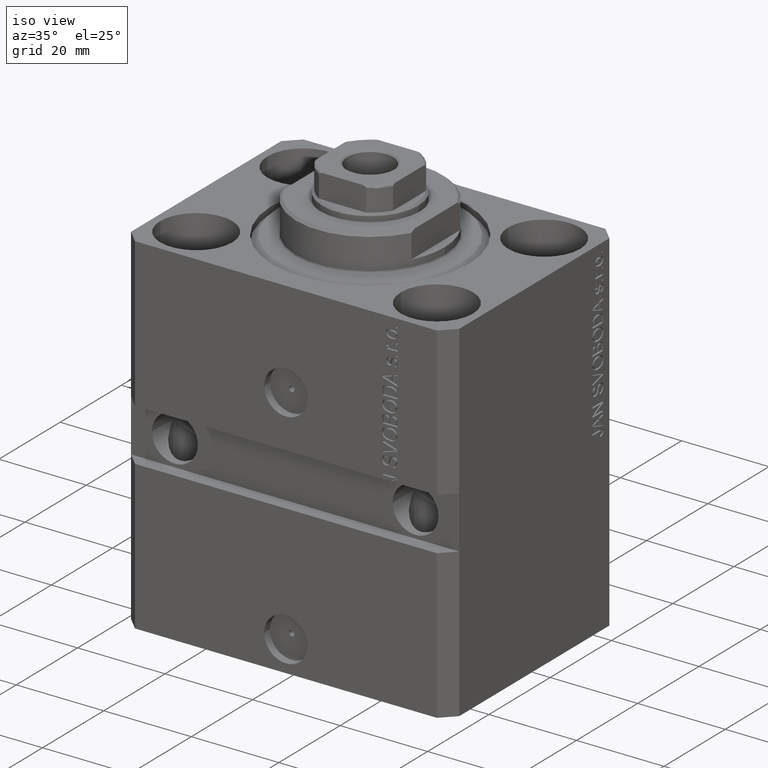
[diagram: clean part render]
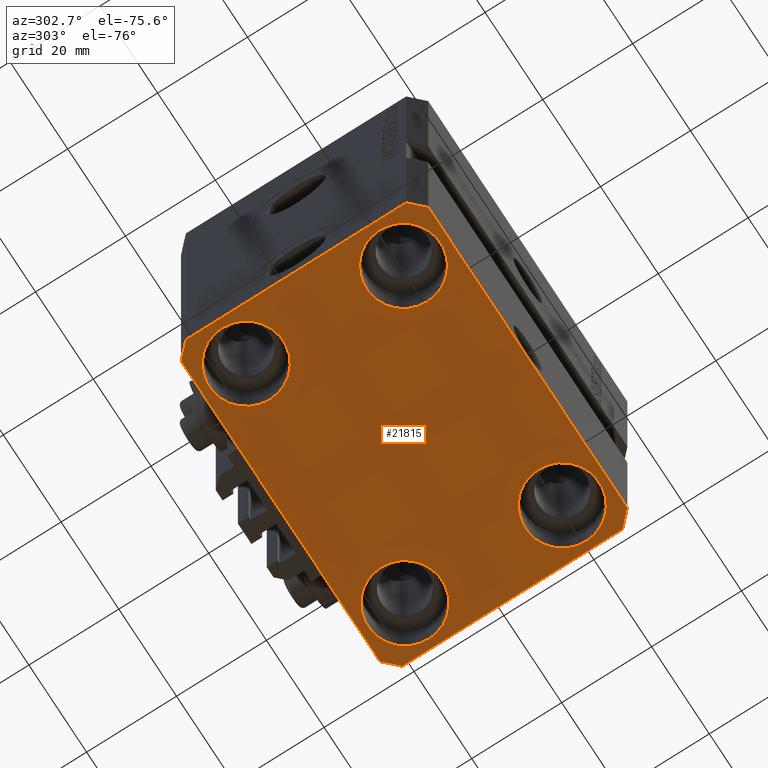
[diagram: tour spotlight — one face highlighted and labeled with its STEP entity id]
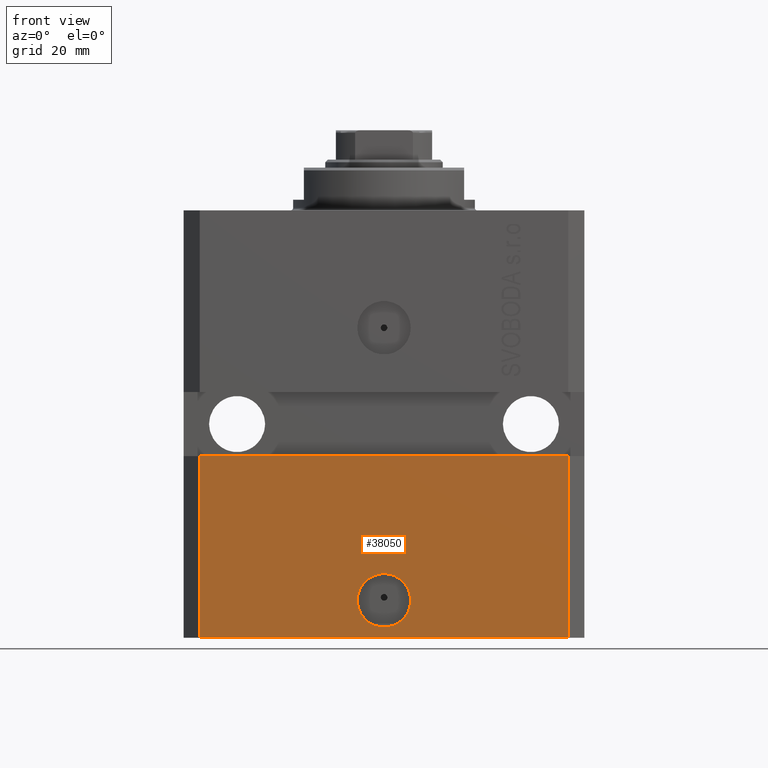
[diagram: tour spotlight — one face highlighted and labeled with its STEP entity id]
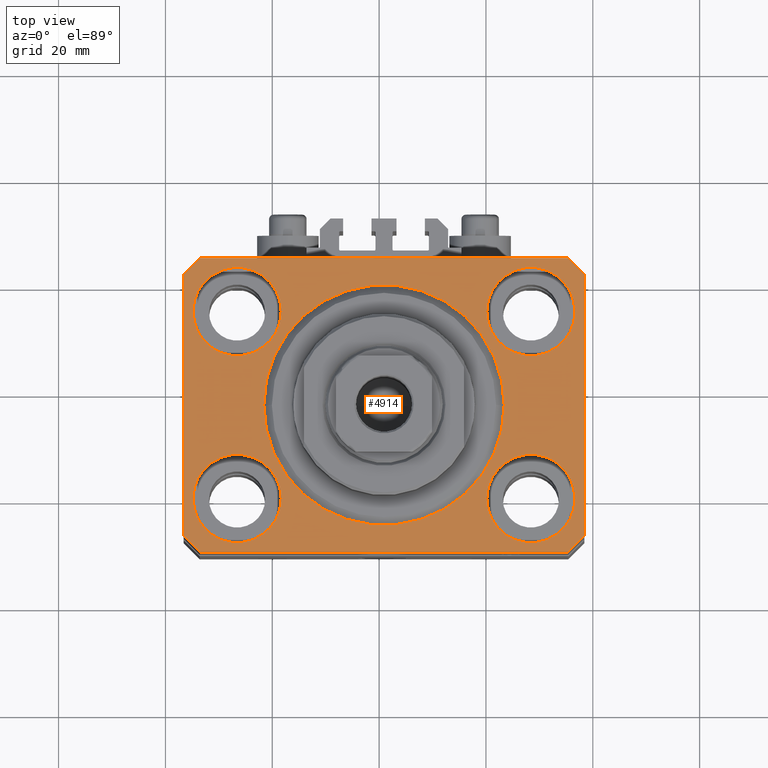
[diagram: tour spotlight — one face highlighted and labeled with its STEP entity id]
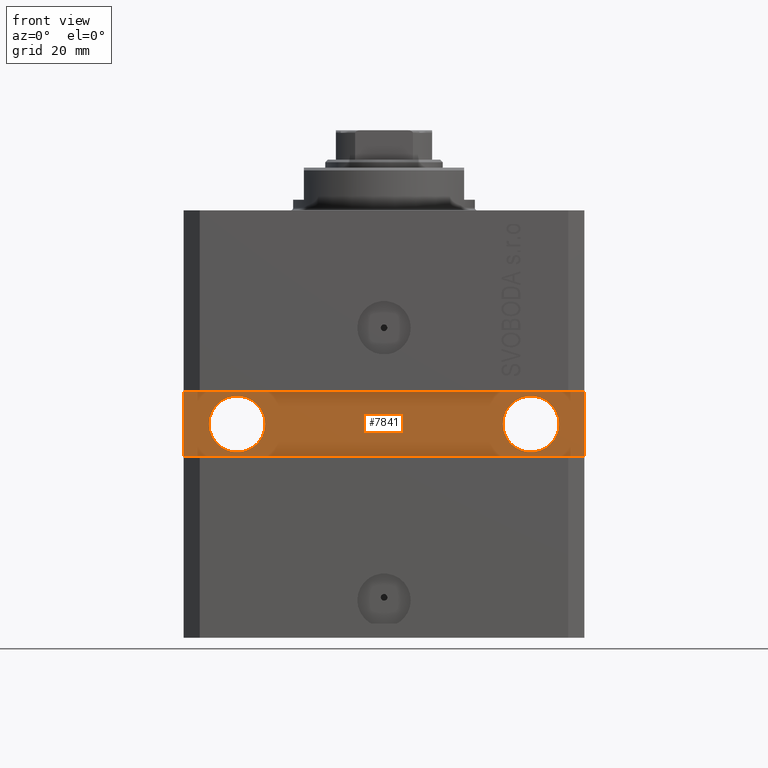
[diagram: tour spotlight — one face highlighted and labeled with its STEP entity id]
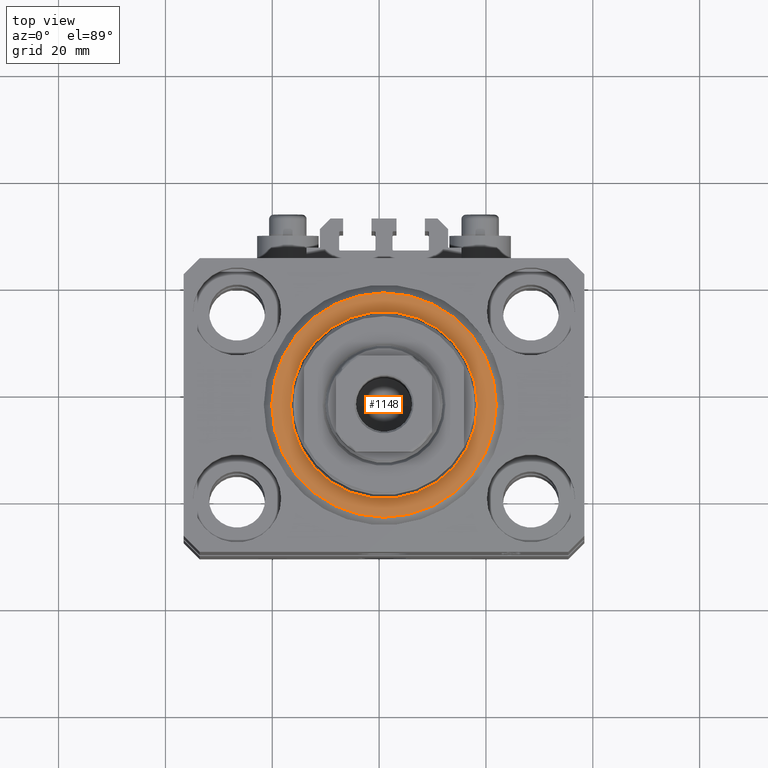
[diagram: tour spotlight — one face highlighted and labeled with its STEP entity id]
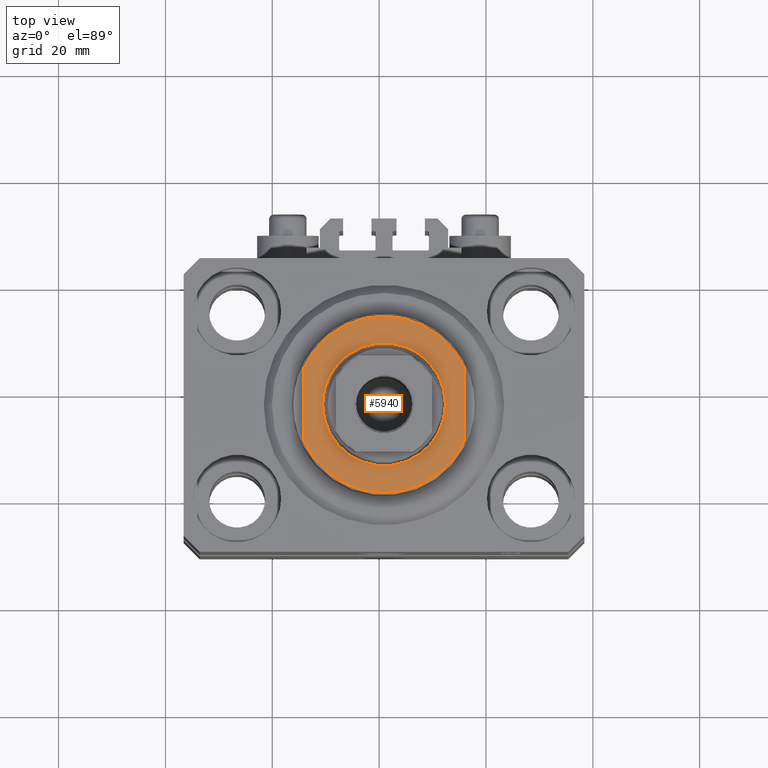
[diagram: tour spotlight — one face highlighted and labeled with its STEP entity id]
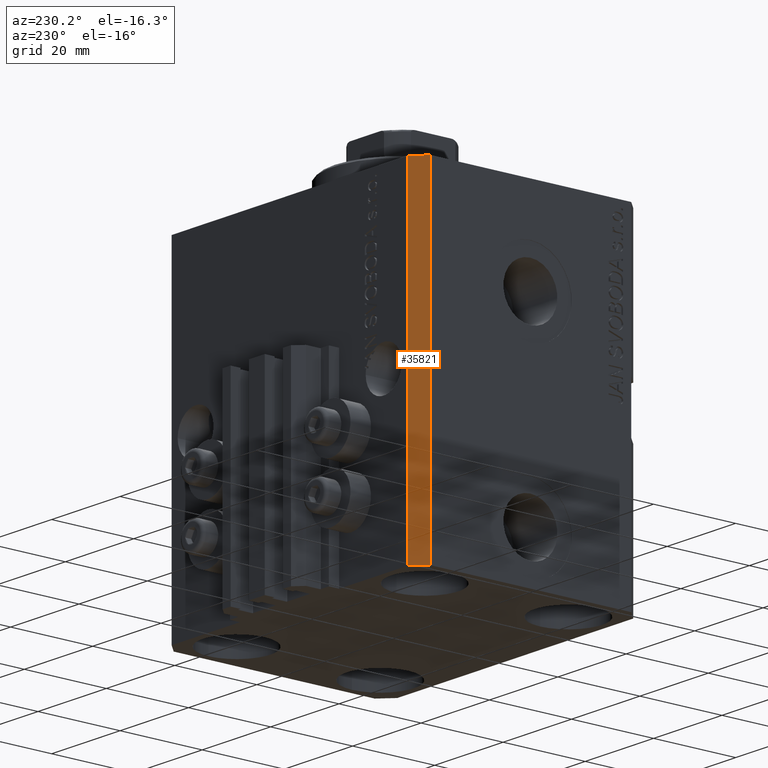
[diagram: tour spotlight — one face highlighted and labeled with its STEP entity id]
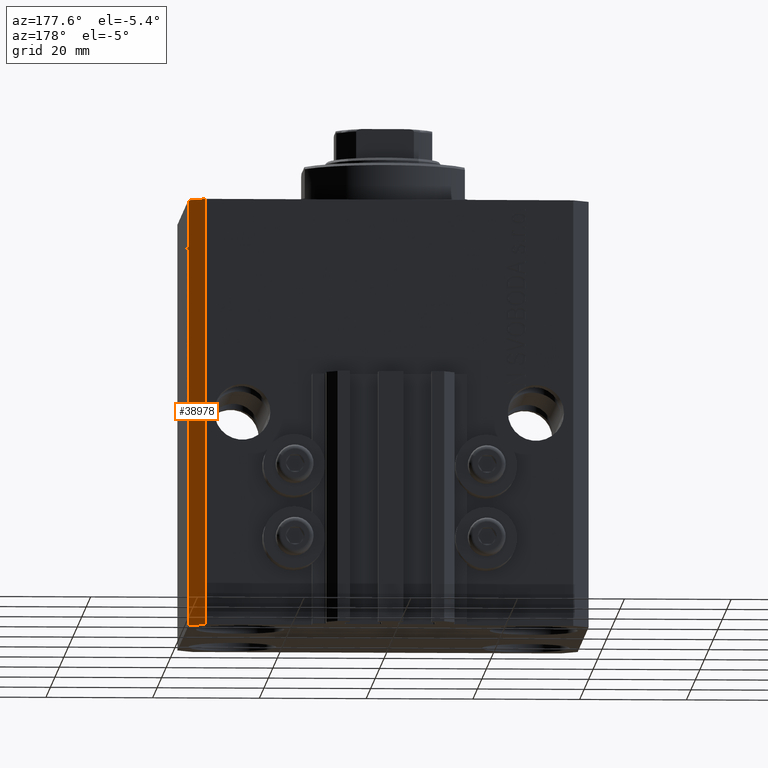
[diagram: tour spotlight — one face highlighted and labeled with its STEP entity id]
A machine part: a face-by-face anatomy tour. The part has 1064 B-rep faces; the first image is the clean iso view, then the 8 largest visible faces are spotlighted one at a time (largest first), each with its STEP entity span.

Face 1 — auxiliary view, entity #21815. In plain terms, the highlighted planar face has unit normal (0, 0, 1).
Definition (entity closure, byte-faithful):
#1331 = CARTESIAN_POINT ( 'NONE',  ( -37.49999999999999289, 24.50000000000000000, -80.00000000000000000 ) ) ;
#1398 = CARTESIAN_POINT ( 'NONE',  ( -27.50000000000000355, 17.50000000000000000, -80.00000000000000000 ) ) ;
#1444 = EDGE_CURVE ( 'NONE', #45995, #45383, #35560, .T. ) ;
#1599 = VERTEX_POINT ( 'NONE', #22073 ) ;
#1707 = EDGE_LOOP ( 'NONE', ( #33715, #18007 ) ) ;
#1992 = VERTEX_POINT ( 'NONE', #36256 ) ;
#2273 = DIRECTION ( 'NONE',  ( 0.000000000000000000, -1.000000000000000000, 0.000000000000000000 ) ) ;
#2406 = DIRECTION ( 'NONE',  ( 1.000000000000000000, 0.000000000000000000, -0.000000000000000000 ) ) ;
#2915 = DIRECTION ( 'NONE',  ( -0.000000000000000000, -0.000000000000000000, 1.000000000000000000 ) ) ;
#3153 = DIRECTION ( 'NONE',  ( 1.000000000000000000, 0.000000000000000000, 0.000000000000000000 ) ) ;
#3207 = CARTESIAN_POINT ( 'NONE',  ( 35.75000000000000711, -17.50000000000000000, -80.00000000000000000 ) ) ;
#3211 = VERTEX_POINT ( 'NONE', #10537 ) ;
#3348 = DIRECTION ( 'NONE',  ( 1.000000000000000000, 0.000000000000000000, 0.000000000000000000 ) ) ;
#3922 = CARTESIAN_POINT ( 'NONE',  ( -34.49999999999999289, 27.50000000000000000, -80.00000000000000000 ) ) ;
#4438 = ORIENTED_EDGE ( 'NONE', *, *, #38809, .F. ) ;
#4740 = AXIS2_PLACEMENT_3D ( 'NONE', #6683, #25385, #3348 ) ;
#6195 = CARTESIAN_POINT ( 'NONE',  ( 19.25000000000000000, -17.50000000000000000, -80.00000000000000000 ) ) ;
#6421 = VECTOR ( 'NONE', #2273, 1000.000000000000000 ) ;
#6488 = CARTESIAN_POINT ( 'NONE',  ( 27.50000000000000355, -17.50000000000000000, -80.00000000000000000 ) ) ;
#6536 = EDGE_CURVE ( 'NONE', #18120, #1992, #34714, .T. ) ;
#6683 = CARTESIAN_POINT ( 'NONE',  ( 27.49999999999999645, 17.50000000000001066, -80.00000000000000000 ) ) ;
#6706 = DIRECTION ( 'NONE',  ( -0.000000000000000000, -0.000000000000000000, 1.000000000000000000 ) ) ;
#7128 = ORIENTED_EDGE ( 'NONE', *, *, #20627, .F. ) ;
#7578 = AXIS2_PLACEMENT_3D ( 'NONE', #6488, #2915, #3153 ) ;
#8033 = CARTESIAN_POINT ( 'NONE',  ( -19.25000000000000355, -17.50000000000000000, -80.00000000000000000 ) ) ;
#8507 = DIRECTION ( 'NONE',  ( 1.000000000000000000, 0.000000000000000000, 0.000000000000000000 ) ) ;
#8830 = PLANE ( 'NONE',  #33189 ) ;
#8927 = LINE ( 'NONE', #19823, #19645 ) ;
#9159 = DIRECTION ( 'NONE',  ( 1.076236605503979380E-14, 1.000000000000000000, 0.000000000000000000 ) ) ;
#9254 = DIRECTION ( 'NONE',  ( 1.000000000000000000, 0.000000000000000000, 0.000000000000000000 ) ) ;
#9292 = FACE_BOUND ( 'NONE', #30485, .T. ) ;
#9815 = EDGE_CURVE ( 'NONE', #28390, #3211, #45188, .T. ) ;
#10031 = VERTEX_POINT ( 'NONE', #8033 ) ;
#10350 = LINE ( 'NONE', #3922, #29246 ) ;
#10537 = CARTESIAN_POINT ( 'NONE',  ( 37.49999999999999289, -24.50000000000000000, -80.00000000000000000 ) ) ;
#10601 = CARTESIAN_POINT ( 'NONE',  ( 19.25000000000000000, 17.50000000000001066, -80.00000000000000000 ) ) ;
#10851 = AXIS2_PLACEMENT_3D ( 'NONE', #12289, #37377, #8507 ) ;
#11191 = DIRECTION ( 'NONE',  ( 0.7071067811865483499, -0.7071067811865466846, 0.000000000000000000 ) ) ;
#12015 = CARTESIAN_POINT ( 'NONE',  ( -27.50000000000000355, -17.50000000000000000, -80.00000000000000000 ) ) ;
#12160 = DIRECTION ( 'NONE',  ( -0.000000000000000000, -0.000000000000000000, 1.000000000000000000 ) ) ;
#12230 = VERTEX_POINT ( 'NONE', #42735 ) ;
#12289 = CARTESIAN_POINT ( 'NONE',  ( -27.50000000000000355, 17.50000000000000000, -80.00000000000000000 ) ) ;
#12334 = CARTESIAN_POINT ( 'NONE',  ( -34.49999999999998579, -27.49999999999999645, -80.00000000000000000 ) ) ;
#12352 = EDGE_CURVE ( 'NONE', #1599, #28370, #24989, .T. ) ;
#12372 = FACE_BOUND ( 'NONE', #28995, .T. ) ;
#12572 = LINE ( 'NONE', #12334, #33385 ) ;
#13222 = LINE ( 'NONE', #17221, #15398 ) ;
#13418 = EDGE_CURVE ( 'NONE', #1992, #14242, #25637, .T. ) ;
#13602 = ORIENTED_EDGE ( 'NONE', *, *, #34130, .F. ) ;
#13907 = EDGE_CURVE ( 'NONE', #10031, #16177, #31529, .T. ) ;
#14242 = VERTEX_POINT ( 'NONE', #25878 ) ;
#14493 = CARTESIAN_POINT ( 'NONE',  ( -19.25000000000000355, 17.50000000000000000, -80.00000000000000000 ) ) ;
#14743 = CARTESIAN_POINT ( 'NONE',  ( -37.49999999999999289, -24.50000000000000000, -80.00000000000000000 ) ) ;
#14995 = CARTESIAN_POINT ( 'NONE',  ( -34.49999999999999289, 27.50000000000000000, -80.00000000000000000 ) ) ;
#15398 = VECTOR ( 'NONE', #46576, 1000.000000000000114 ) ;
#15872 = CIRCLE ( 'NONE', #7578, 8.250000000000000000 ) ;
#16177 = VERTEX_POINT ( 'NONE', #39211 ) ;
#16342 = ORIENTED_EDGE ( 'NONE', *, *, #13418, .F. ) ;
#17153 = AXIS2_PLACEMENT_3D ( 'NONE', #12015, #26457, #40891 ) ;
#17221 = CARTESIAN_POINT ( 'NONE',  ( 37.50000000000051870, 24.49999999999995381, -80.00000000000000000 ) ) ;
#18007 = ORIENTED_EDGE ( 'NONE', *, *, #1444, .T. ) ;
#18120 = VERTEX_POINT ( 'NONE', #1331 ) ;
#18124 = AXIS2_PLACEMENT_3D ( 'NONE', #37861, #41411, #20120 ) ;
#18461 = DIRECTION ( 'NONE',  ( -0.000000000000000000, -0.000000000000000000, 1.000000000000000000 ) ) ;
#18897 = CIRCLE ( 'NONE', #46080, 8.250000000000000000 ) ;
#19011 = CARTESIAN_POINT ( 'NONE',  ( 34.49999999999999289, -27.49999999999999645, -80.00000000000000000 ) ) ;
#19645 = VECTOR ( 'NONE', #9159, 1000.000000000000000 ) ;
#19823 = CARTESIAN_POINT ( 'NONE',  ( 37.49999999999999289, -24.50000000000000000, -80.00000000000000000 ) ) ;
#20120 = DIRECTION ( 'NONE',  ( 1.000000000000000000, 0.000000000000000000, 0.000000000000000000 ) ) ;
#20251 = EDGE_CURVE ( 'NONE', #33971, #37064, #18897, .T. ) ;
#20305 = EDGE_CURVE ( 'NONE', #20406, #12230, #45340, .T. ) ;
#20406 = VERTEX_POINT ( 'NONE', #10601 ) ;
#20421 = DIRECTION ( 'NONE',  ( 0.000000000000000000, 0.000000000000000000, 1.000000000000000000 ) ) ;
#20627 = EDGE_CURVE ( 'NONE', #3211, #30090, #8927, .T. ) ;
#20829 = ORIENTED_EDGE ( 'NONE', *, *, #12352, .F. ) ;
#21039 = EDGE_CURVE ( 'NONE', #16177, #10031, #26467, .T. ) ;
#21204 = DIRECTION ( 'NONE',  ( -1.000000000000000000, 0.000000000000000000, 0.000000000000000000 ) ) ;
#21350 = ORIENTED_EDGE ( 'NONE', *, *, #20251, .T. ) ;
#21815 = ADVANCED_FACE ( 'NONE', ( #9292, #38411, #23510, #12372, #41955 ), #8830, .F. ) ;
#22073 = CARTESIAN_POINT ( 'NONE',  ( 34.50000000000056843, 27.50000000000000000, -80.00000000000000000 ) ) ;
#23510 = FACE_BOUND ( 'NONE', #25029, .T. ) ;
#23665 = CIRCLE ( 'NONE', #4740, 8.249999999999992895 ) ;
#24098 = ORIENTED_EDGE ( 'NONE', *, *, #21039, .T. ) ;
#24128 = DIRECTION ( 'NONE',  ( 0.7071067811865474617, 0.7071067811865474617, 0.000000000000000000 ) ) ;
#24517 = CARTESIAN_POINT ( 'NONE',  ( -37.49999999999999289, 24.50000000000000000, -80.00000000000000000 ) ) ;
#24704 = CARTESIAN_POINT ( 'NONE',  ( -27.50000000000000355, -17.50000000000000000, -80.00000000000000000 ) ) ;
#24989 = LINE ( 'NONE', #40122, #34476 ) ;
#25029 = EDGE_LOOP ( 'NONE', ( #44532, #30319 ) ) ;
#25377 = CARTESIAN_POINT ( 'NONE',  ( -35.75000000000000711, 17.50000000000000000, -80.00000000000000000 ) ) ;
#25385 = DIRECTION ( 'NONE',  ( -0.000000000000000000, -0.000000000000000000, 1.000000000000000000 ) ) ;
#25438 = EDGE_CURVE ( 'NONE', #45383, #45995, #15872, .T. ) ;
#25637 = LINE ( 'NONE', #14743, #42849 ) ;
#25878 = CARTESIAN_POINT ( 'NONE',  ( -34.49999999999998579, -27.49999999999999645, -80.00000000000000000 ) ) ;
#26457 = DIRECTION ( 'NONE',  ( -0.000000000000000000, -0.000000000000000000, 1.000000000000000000 ) ) ;
#26467 = CIRCLE ( 'NONE', #32510, 8.250000000000000000 ) ;
#26468 = ORIENTED_EDGE ( 'NONE', *, *, #13907, .T. ) ;
#26604 = DIRECTION ( 'NONE',  ( 1.000000000000000000, 0.000000000000000000, 0.000000000000000000 ) ) ;
#28223 = CIRCLE ( 'NONE', #10851, 8.250000000000000000 ) ;
#28370 = VERTEX_POINT ( 'NONE', #14995 ) ;
#28390 = VERTEX_POINT ( 'NONE', #19011 ) ;
#28995 = EDGE_LOOP ( 'NONE', ( #21350, #42421 ) ) ;
#29246 = VECTOR ( 'NONE', #32127, 1000.000000000000000 ) ;
#29541 = EDGE_LOOP ( 'NONE', ( #20829, #4438, #7128, #38705, #13602, #16342, #33081, #38538 ) ) ;
#30090 = VERTEX_POINT ( 'NONE', #32895 ) ;
#30151 = CARTESIAN_POINT ( 'NONE',  ( 27.50000000000000355, -17.50000000000000000, -80.00000000000000000 ) ) ;
#30319 = ORIENTED_EDGE ( 'NONE', *, *, #37105, .T. ) ;
#30485 = EDGE_LOOP ( 'NONE', ( #24098, #26468 ) ) ;
#30517 = CARTESIAN_POINT ( 'NONE',  ( 34.49999999999999289, -27.49999999999999645, -80.00000000000000000 ) ) ;
#31529 = CIRCLE ( 'NONE', #17153, 8.250000000000000000 ) ;
#32127 = DIRECTION ( 'NONE',  ( -0.7071067811865471286, -0.7071067811865479058, 0.000000000000000000 ) ) ;
#32510 = AXIS2_PLACEMENT_3D ( 'NONE', #24704, #6706, #35579 ) ;
#32895 = CARTESIAN_POINT ( 'NONE',  ( 37.50000000000051870, 24.49999999999995381, -80.00000000000000000 ) ) ;
#33081 = ORIENTED_EDGE ( 'NONE', *, *, #6536, .F. ) ;
#33189 = AXIS2_PLACEMENT_3D ( 'NONE', #45495, #20421, #2406 ) ;
#33385 = VECTOR ( 'NONE', #9254, 1000.000000000000000 ) ;
#33715 = ORIENTED_EDGE ( 'NONE', *, *, #25438, .T. ) ;
#33971 = VERTEX_POINT ( 'NONE', #25377 ) ;
#34130 = EDGE_CURVE ( 'NONE', #14242, #28390, #12572, .T. ) ;
#34476 = VECTOR ( 'NONE', #21204, 1000.000000000000000 ) ;
#34714 = LINE ( 'NONE', #24517, #6421 ) ;
#35560 = CIRCLE ( 'NONE', #37839, 8.250000000000000000 ) ;
#35579 = DIRECTION ( 'NONE',  ( 1.000000000000000000, 0.000000000000000000, 0.000000000000000000 ) ) ;
#35913 = VECTOR ( 'NONE', #24128, 1000.000000000000114 ) ;
#36256 = CARTESIAN_POINT ( 'NONE',  ( -37.49999999999999289, -24.50000000000000000, -80.00000000000000000 ) ) ;
#37064 = VERTEX_POINT ( 'NONE', #14493 ) ;
#37105 = EDGE_CURVE ( 'NONE', #12230, #20406, #23665, .T. ) ;
#37377 = DIRECTION ( 'NONE',  ( -0.000000000000000000, -0.000000000000000000, 1.000000000000000000 ) ) ;
#37839 = AXIS2_PLACEMENT_3D ( 'NONE', #30151, #12160, #26604 ) ;
#37861 = CARTESIAN_POINT ( 'NONE',  ( 27.49999999999999645, 17.50000000000001066, -80.00000000000000000 ) ) ;
#38411 = FACE_BOUND ( 'NONE', #1707, .T. ) ;
#38538 = ORIENTED_EDGE ( 'NONE', *, *, #46455, .F. ) ;
#38705 = ORIENTED_EDGE ( 'NONE', *, *, #9815, .F. ) ;
#38724 = EDGE_CURVE ( 'NONE', #37064, #33971, #28223, .T. ) ;
#38809 = EDGE_CURVE ( 'NONE', #30090, #1599, #13222, .T. ) ;
#39211 = CARTESIAN_POINT ( 'NONE',  ( -35.75000000000000711, -17.50000000000000000, -80.00000000000000000 ) ) ;
#40122 = CARTESIAN_POINT ( 'NONE',  ( 34.50000000000056843, 27.50000000000000000, -80.00000000000000000 ) ) ;
#40244 = DIRECTION ( 'NONE',  ( 1.000000000000000000, 0.000000000000000000, 0.000000000000000000 ) ) ;
#40891 = DIRECTION ( 'NONE',  ( 1.000000000000000000, 0.000000000000000000, 0.000000000000000000 ) ) ;
#41411 = DIRECTION ( 'NONE',  ( -0.000000000000000000, -0.000000000000000000, 1.000000000000000000 ) ) ;
#41955 = FACE_OUTER_BOUND ( 'NONE', #29541, .T. ) ;
#42421 = ORIENTED_EDGE ( 'NONE', *, *, #38724, .T. ) ;
#42735 = CARTESIAN_POINT ( 'NONE',  ( 35.74999999999999289, 17.50000000000001066, -80.00000000000000000 ) ) ;
#42849 = VECTOR ( 'NONE', #11191, 1000.000000000000000 ) ;
#44532 = ORIENTED_EDGE ( 'NONE', *, *, #20305, .T. ) ;
#45188 = LINE ( 'NONE', #30517, #35913 ) ;
#45340 = CIRCLE ( 'NONE', #18124, 8.249999999999992895 ) ;
#45383 = VERTEX_POINT ( 'NONE', #6195 ) ;
#45495 = CARTESIAN_POINT ( 'NONE',  ( 0.000000000000000000, 0.000000000000000000, -80.00000000000000000 ) ) ;
#45995 = VERTEX_POINT ( 'NONE', #3207 ) ;
#46080 = AXIS2_PLACEMENT_3D ( 'NONE', #1398, #18461, #40244 ) ;
#46455 = EDGE_CURVE ( 'NONE', #28370, #18120, #10350, .T. ) ;
#46576 = DIRECTION ( 'NONE',  ( -0.7071067811865356934, 0.7071067811865594521, 0.000000000000000000 ) ) ;

Face 2 — front view, entity #38050. In plain terms, the highlighted planar face has unit normal (0, -1, 0).
Definition (entity closure, byte-faithful):
#1001 = CARTESIAN_POINT ( 'NONE',  ( -34.49999999999998579, -27.50000000000000000, -46.00000000000000000 ) ) ;
#2509 = AXIS2_PLACEMENT_3D ( 'NONE', #41989, #9564, #24015 ) ;
#3180 = CARTESIAN_POINT ( 'NONE',  ( 34.49999999999999289, -27.49999999999999645, -80.00000000000000000 ) ) ;
#4122 = ORIENTED_EDGE ( 'NONE', *, *, #7468, .F. ) ;
#5636 = EDGE_CURVE ( 'NONE', #28390, #32037, #13858, .T. ) ;
#5807 = EDGE_CURVE ( 'NONE', #42756, #32037, #8168, .T. ) ;
#7248 = VECTOR ( 'NONE', #26095, 1000.000000000000000 ) ;
#7468 = EDGE_CURVE ( 'NONE', #23699, #25419, #10241, .T. ) ;
#8168 = LINE ( 'NONE', #22373, #20804 ) ;
#9254 = DIRECTION ( 'NONE',  ( 1.000000000000000000, 0.000000000000000000, 0.000000000000000000 ) ) ;
#9564 = DIRECTION ( 'NONE',  ( 0.000000000000000000, -1.000000000000000000, 0.000000000000000000 ) ) ;
#10241 = CIRCLE ( 'NONE', #36707, 5.000000000000006217 ) ;
#12334 = CARTESIAN_POINT ( 'NONE',  ( -34.49999999999998579, -27.49999999999999645, -80.00000000000000000 ) ) ;
#12517 = ORIENTED_EDGE ( 'NONE', *, *, #43682, .F. ) ;
#12572 = LINE ( 'NONE', #12334, #33385 ) ;
#12787 = ORIENTED_EDGE ( 'NONE', *, *, #5636, .T. ) ;
#12796 = CARTESIAN_POINT ( 'NONE',  ( -5.000000000000006217, -27.49999999999999645, -73.00000000000000000 ) ) ;
#12966 = EDGE_LOOP ( 'NONE', ( #28291, #4122 ) ) ;
#13112 = FACE_BOUND ( 'NONE', #12966, .T. ) ;
#13858 = LINE ( 'NONE', #3180, #32151 ) ;
#14242 = VERTEX_POINT ( 'NONE', #25878 ) ;
#14982 = CIRCLE ( 'NONE', #37645, 5.000000000000006217 ) ;
#15959 = EDGE_CURVE ( 'NONE', #25419, #23699, #14982, .T. ) ;
#19011 = CARTESIAN_POINT ( 'NONE',  ( 34.49999999999999289, -27.49999999999999645, -80.00000000000000000 ) ) ;
#20313 = DIRECTION ( 'NONE',  ( 1.176083712526788232E-16, -1.000000000000000000, 0.000000000000000000 ) ) ;
#20804 = VECTOR ( 'NONE', #22605, 1000.000000000000000 ) ;
#22373 = CARTESIAN_POINT ( 'NONE',  ( -37.50000000000000000, -27.50000000000000000, -46.00000000000000000 ) ) ;
#22605 = DIRECTION ( 'NONE',  ( 1.000000000000000000, 9.251858538542972814E-17, 0.000000000000000000 ) ) ;
#23699 = VERTEX_POINT ( 'NONE', #12796 ) ;
#24015 = DIRECTION ( 'NONE',  ( 0.000000000000000000, -0.000000000000000000, -1.000000000000000000 ) ) ;
#24797 = ORIENTED_EDGE ( 'NONE', *, *, #34130, .T. ) ;
#25419 = VERTEX_POINT ( 'NONE', #28260 ) ;
#25878 = CARTESIAN_POINT ( 'NONE',  ( -34.49999999999998579, -27.49999999999999645, -80.00000000000000000 ) ) ;
#26095 = DIRECTION ( 'NONE',  ( 0.000000000000000000, 0.000000000000000000, 1.000000000000000000 ) ) ;
#27288 = DIRECTION ( 'NONE',  ( 1.176083712526788232E-16, -1.000000000000000000, 0.000000000000000000 ) ) ;
#27441 = CARTESIAN_POINT ( 'NONE',  ( 34.49999999999999289, -27.49999999999999289, -46.00000000000000000 ) ) ;
#27540 = PLANE ( 'NONE',  #2509 ) ;
#28260 = CARTESIAN_POINT ( 'NONE',  ( 5.000000000000006217, -27.49999999999999645, -73.00000000000000000 ) ) ;
#28291 = ORIENTED_EDGE ( 'NONE', *, *, #15959, .F. ) ;
#28390 = VERTEX_POINT ( 'NONE', #19011 ) ;
#29413 = LINE ( 'NONE', #36273, #7248 ) ;
#30488 = CARTESIAN_POINT ( 'NONE',  ( 0.000000000000000000, -27.49999999999999645, -73.00000000000000000 ) ) ;
#32037 = VERTEX_POINT ( 'NONE', #27441 ) ;
#32151 = VECTOR ( 'NONE', #43192, 1000.000000000000000 ) ;
#33385 = VECTOR ( 'NONE', #9254, 1000.000000000000000 ) ;
#34130 = EDGE_CURVE ( 'NONE', #14242, #28390, #12572, .T. ) ;
#34157 = DIRECTION ( 'NONE',  ( 1.000000000000000000, 0.000000000000000000, 0.000000000000000000 ) ) ;
#34630 = CARTESIAN_POINT ( 'NONE',  ( 0.000000000000000000, -27.49999999999999645, -73.00000000000000000 ) ) ;
#36273 = CARTESIAN_POINT ( 'NONE',  ( -34.49999999999998579, -27.49999999999999645, -80.00000000000000000 ) ) ;
#36707 = AXIS2_PLACEMENT_3D ( 'NONE', #34630, #27288, #34157 ) ;
#36769 = EDGE_LOOP ( 'NONE', ( #43401, #12517, #24797, #12787 ) ) ;
#37645 = AXIS2_PLACEMENT_3D ( 'NONE', #30488, #20313, #44921 ) ;
#38050 = ADVANCED_FACE ( 'NONE', ( #13112, #45764 ), #27540, .T. ) ;
#41989 = CARTESIAN_POINT ( 'NONE',  ( -34.49999999999998579, -27.49999999999999645, -80.00000000000000000 ) ) ;
#42756 = VERTEX_POINT ( 'NONE', #1001 ) ;
#43192 = DIRECTION ( 'NONE',  ( 0.000000000000000000, 0.000000000000000000, 1.000000000000000000 ) ) ;
#43401 = ORIENTED_EDGE ( 'NONE', *, *, #5807, .F. ) ;
#43682 = EDGE_CURVE ( 'NONE', #14242, #42756, #29413, .T. ) ;
#44921 = DIRECTION ( 'NONE',  ( 1.000000000000000000, 0.000000000000000000, 0.000000000000000000 ) ) ;
#45764 = FACE_OUTER_BOUND ( 'NONE', #36769, .T. ) ;

Face 3 — top view, entity #4914. In plain terms, the highlighted planar face has unit normal (0, 0, 1).
Definition (entity closure, byte-faithful):
#149 = EDGE_CURVE ( 'NONE', #13785, #28560, #15047, .T. ) ;
#184 = CARTESIAN_POINT ( 'NONE',  ( -35.75000000000000711, 17.50000000000000000, 0.000000000000000000 ) ) ;
#362 = EDGE_LOOP ( 'NONE', ( #34828, #18197, #3101, #8363, #18243, #13038, #20756, #40966 ) ) ;
#411 = CARTESIAN_POINT ( 'NONE',  ( 37.50000000000051870, 24.49999999999995381, 0.000000000000000000 ) ) ;
#526 = CARTESIAN_POINT ( 'NONE',  ( 0.000000000000000000, 0.000000000000000000, 0.000000000000000000 ) ) ;
#1310 = VERTEX_POINT ( 'NONE', #43894 ) ;
#1333 = EDGE_CURVE ( 'NONE', #1310, #30973, #14780, .T. ) ;
#1635 = AXIS2_PLACEMENT_3D ( 'NONE', #526, #37209, #29172 ) ;
#1908 = DIRECTION ( 'NONE',  ( 1.000000000000000000, 0.000000000000000000, -0.000000000000000000 ) ) ;
#1956 = CARTESIAN_POINT ( 'NONE',  ( 27.50000000000000355, -17.50000000000000000, 0.000000000000000000 ) ) ;
#2901 = EDGE_LOOP ( 'NONE', ( #4112, #24885 ) ) ;
#3087 = CARTESIAN_POINT ( 'NONE',  ( 37.50000000000051870, 24.49999999999995381, 0.000000000000000000 ) ) ;
#3101 = ORIENTED_EDGE ( 'NONE', *, *, #18398, .T. ) ;
#3493 = ORIENTED_EDGE ( 'NONE', *, *, #16537, .F. ) ;
#3678 = VERTEX_POINT ( 'NONE', #16134 ) ;
#3883 = CIRCLE ( 'NONE', #1635, 22.50000000000000355 ) ;
#4112 = ORIENTED_EDGE ( 'NONE', *, *, #19748, .F. ) ;
#4416 = VERTEX_POINT ( 'NONE', #15819 ) ;
#4449 = VECTOR ( 'NONE', #30336, 1000.000000000000000 ) ;
#4914 = ADVANCED_FACE ( 'NONE', ( #41211, #23474, #44535, #8330, #8793, #19210 ), #37900, .T. ) ;
#5063 = CARTESIAN_POINT ( 'NONE',  ( 34.49999999999999289, -27.49999999999999645, 0.000000000000000000 ) ) ;
#5136 = AXIS2_PLACEMENT_3D ( 'NONE', #42083, #10339, #24785 ) ;
#5740 = VERTEX_POINT ( 'NONE', #5063 ) ;
#6193 = DIRECTION ( 'NONE',  ( -0.7071067811865356934, 0.7071067811865594521, 0.000000000000000000 ) ) ;
#6333 = VERTEX_POINT ( 'NONE', #18154 ) ;
#6736 = VERTEX_POINT ( 'NONE', #13117 ) ;
#7243 = CIRCLE ( 'NONE', #11020, 8.250000000000000000 ) ;
#7414 = CIRCLE ( 'NONE', #12715, 8.250000000000000000 ) ;
#7566 = CARTESIAN_POINT ( 'NONE',  ( 27.50000000000000355, -17.50000000000000000, 0.000000000000000000 ) ) ;
#7619 = EDGE_CURVE ( 'NONE', #18411, #36421, #7243, .T. ) ;
#7668 = CARTESIAN_POINT ( 'NONE',  ( -27.50000000000000355, -17.50000000000000000, 0.000000000000000000 ) ) ;
#7685 = CARTESIAN_POINT ( 'NONE',  ( -34.49999999999999289, 27.50000000000000000, 0.000000000000000000 ) ) ;
#7989 = DIRECTION ( 'NONE',  ( 1.000000000000000000, 0.000000000000000000, 0.000000000000000000 ) ) ;
#8330 = FACE_BOUND ( 'NONE', #38918, .T. ) ;
#8363 = ORIENTED_EDGE ( 'NONE', *, *, #25826, .T. ) ;
#8385 = VECTOR ( 'NONE', #29611, 1000.000000000000000 ) ;
#8793 = FACE_BOUND ( 'NONE', #36283, .T. ) ;
#9654 = ORIENTED_EDGE ( 'NONE', *, *, #30718, .F. ) ;
#9675 = AXIS2_PLACEMENT_3D ( 'NONE', #7566, #43297, #22008 ) ;
#9742 = DIRECTION ( 'NONE',  ( 1.000000000000000000, 0.000000000000000000, 0.000000000000000000 ) ) ;
#9970 = CARTESIAN_POINT ( 'NONE',  ( -19.25000000000000355, 17.50000000000000000, 0.000000000000000000 ) ) ;
#10339 = DIRECTION ( 'NONE',  ( 0.000000000000000000, 0.000000000000000000, 1.000000000000000000 ) ) ;
#10980 = CARTESIAN_POINT ( 'NONE',  ( -27.50000000000000355, 17.50000000000000000, 0.000000000000000000 ) ) ;
#11020 = AXIS2_PLACEMENT_3D ( 'NONE', #1956, #41496, #24606 ) ;
#11965 = LINE ( 'NONE', #37284, #19667 ) ;
#11967 = DIRECTION ( 'NONE',  ( 1.000000000000000000, 0.000000000000000000, 0.000000000000000000 ) ) ;
#12651 = EDGE_CURVE ( 'NONE', #6736, #6333, #38272, .T. ) ;
#12715 = AXIS2_PLACEMENT_3D ( 'NONE', #10980, #25197, #24959 ) ;
#13038 = ORIENTED_EDGE ( 'NONE', *, *, #39763, .T. ) ;
#13117 = CARTESIAN_POINT ( 'NONE',  ( 22.50000000000000355, 0.000000000000000000, 0.000000000000000000 ) ) ;
#13785 = VERTEX_POINT ( 'NONE', #184 ) ;
#14780 = LINE ( 'NONE', #7685, #37875 ) ;
#14864 = CARTESIAN_POINT ( 'NONE',  ( 34.49999999999999289, -27.49999999999999645, 0.000000000000000000 ) ) ;
#15047 = CIRCLE ( 'NONE', #25626, 8.250000000000000000 ) ;
#15180 = CARTESIAN_POINT ( 'NONE',  ( -37.49999999999999289, -24.50000000000000000, 0.000000000000000000 ) ) ;
#15252 = DIRECTION ( 'NONE',  ( -0.7071067811865471286, -0.7071067811865479058, 0.000000000000000000 ) ) ;
#15359 = EDGE_CURVE ( 'NONE', #28865, #5740, #15745, .T. ) ;
#15595 = VERTEX_POINT ( 'NONE', #25183 ) ;
#15745 = LINE ( 'NONE', #43690, #44410 ) ;
#15809 = AXIS2_PLACEMENT_3D ( 'NONE', #22437, #25740, #7989 ) ;
#15819 = CARTESIAN_POINT ( 'NONE',  ( 37.49999999999999289, -24.50000000000000000, 0.000000000000000000 ) ) ;
#16134 = CARTESIAN_POINT ( 'NONE',  ( 35.74999999999999289, 17.50000000000001066, 0.000000000000000000 ) ) ;
#16162 = EDGE_CURVE ( 'NONE', #15595, #46356, #21774, .T. ) ;
#16537 = EDGE_CURVE ( 'NONE', #28560, #13785, #7414, .T. ) ;
#16604 = LINE ( 'NONE', #31284, #18294 ) ;
#16884 = EDGE_CURVE ( 'NONE', #36421, #18411, #17964, .T. ) ;
#17964 = CIRCLE ( 'NONE', #9675, 8.250000000000000000 ) ;
#18154 = CARTESIAN_POINT ( 'NONE',  ( -22.50000000000000355, 2.755455298081545172E-15, 0.000000000000000000 ) ) ;
#18197 = ORIENTED_EDGE ( 'NONE', *, *, #1333, .T. ) ;
#18243 = ORIENTED_EDGE ( 'NONE', *, *, #15359, .T. ) ;
#18294 = VECTOR ( 'NONE', #34359, 1000.000000000000000 ) ;
#18398 = EDGE_CURVE ( 'NONE', #30973, #37233, #29875, .T. ) ;
#18411 = VERTEX_POINT ( 'NONE', #30106 ) ;
#19210 = FACE_OUTER_BOUND ( 'NONE', #362, .T. ) ;
#19551 = CARTESIAN_POINT ( 'NONE',  ( -27.50000000000000355, 17.50000000000000000, 0.000000000000000000 ) ) ;
#19613 = ORIENTED_EDGE ( 'NONE', *, *, #16884, .F. ) ;
#19667 = VECTOR ( 'NONE', #33508, 1000.000000000000000 ) ;
#19748 = EDGE_CURVE ( 'NONE', #3678, #45149, #37753, .T. ) ;
#20023 = DIRECTION ( 'NONE',  ( 0.000000000000000000, 0.000000000000000000, 1.000000000000000000 ) ) ;
#20127 = ORIENTED_EDGE ( 'NONE', *, *, #25568, .F. ) ;
#20456 = AXIS2_PLACEMENT_3D ( 'NONE', #7668, #44577, #33461 ) ;
#20756 = ORIENTED_EDGE ( 'NONE', *, *, #31765, .T. ) ;
#21257 = AXIS2_PLACEMENT_3D ( 'NONE', #34840, #31294, #9742 ) ;
#21774 = CIRCLE ( 'NONE', #5136, 8.250000000000000000 ) ;
#22008 = DIRECTION ( 'NONE',  ( 1.000000000000000000, 0.000000000000000000, 0.000000000000000000 ) ) ;
#22437 = CARTESIAN_POINT ( 'NONE',  ( 27.49999999999999645, 17.50000000000001066, 0.000000000000000000 ) ) ;
#22677 = LINE ( 'NONE', #14864, #32826 ) ;
#23474 = FACE_BOUND ( 'NONE', #24567, .T. ) ;
#24567 = EDGE_LOOP ( 'NONE', ( #19613, #25945 ) ) ;
#24577 = EDGE_CURVE ( 'NONE', #38415, #1310, #11965, .T. ) ;
#24606 = DIRECTION ( 'NONE',  ( 1.000000000000000000, 0.000000000000000000, 0.000000000000000000 ) ) ;
#24785 = DIRECTION ( 'NONE',  ( 1.000000000000000000, 0.000000000000000000, 0.000000000000000000 ) ) ;
#24885 = ORIENTED_EDGE ( 'NONE', *, *, #27690, .F. ) ;
#24959 = DIRECTION ( 'NONE',  ( 1.000000000000000000, 0.000000000000000000, 0.000000000000000000 ) ) ;
#25183 = CARTESIAN_POINT ( 'NONE',  ( -35.75000000000000711, -17.50000000000000000, 0.000000000000000000 ) ) ;
#25197 = DIRECTION ( 'NONE',  ( 0.000000000000000000, 0.000000000000000000, 1.000000000000000000 ) ) ;
#25568 = EDGE_CURVE ( 'NONE', #46356, #15595, #40888, .T. ) ;
#25626 = AXIS2_PLACEMENT_3D ( 'NONE', #19551, #20023, #34449 ) ;
#25740 = DIRECTION ( 'NONE',  ( 0.000000000000000000, 0.000000000000000000, 1.000000000000000000 ) ) ;
#25826 = EDGE_CURVE ( 'NONE', #37233, #28865, #29379, .T. ) ;
#25945 = ORIENTED_EDGE ( 'NONE', *, *, #7619, .F. ) ;
#27091 = DIRECTION ( 'NONE',  ( 0.000000000000000000, 0.000000000000000000, 1.000000000000000000 ) ) ;
#27243 = DIRECTION ( 'NONE',  ( 0.000000000000000000, 0.000000000000000000, 1.000000000000000000 ) ) ;
#27690 = EDGE_CURVE ( 'NONE', #45149, #3678, #35597, .T. ) ;
#27716 = EDGE_CURVE ( 'NONE', #39842, #38415, #35524, .T. ) ;
#28009 = DIRECTION ( 'NONE',  ( 1.000000000000000000, 0.000000000000000000, 0.000000000000000000 ) ) ;
#28560 = VERTEX_POINT ( 'NONE', #9970 ) ;
#28865 = VERTEX_POINT ( 'NONE', #35017 ) ;
#29172 = DIRECTION ( 'NONE',  ( 1.000000000000000000, 0.000000000000000000, 0.000000000000000000 ) ) ;
#29379 = LINE ( 'NONE', #15180, #8385 ) ;
#29611 = DIRECTION ( 'NONE',  ( 0.7071067811865483499, -0.7071067811865466846, 0.000000000000000000 ) ) ;
#29875 = LINE ( 'NONE', #37210, #4449 ) ;
#30106 = CARTESIAN_POINT ( 'NONE',  ( 19.25000000000000000, -17.50000000000000000, 0.000000000000000000 ) ) ;
#30336 = DIRECTION ( 'NONE',  ( 0.000000000000000000, -1.000000000000000000, 0.000000000000000000 ) ) ;
#30718 = EDGE_CURVE ( 'NONE', #6333, #6736, #3883, .T. ) ;
#30799 = EDGE_LOOP ( 'NONE', ( #20127, #38174 ) ) ;
#30973 = VERTEX_POINT ( 'NONE', #42852 ) ;
#31284 = CARTESIAN_POINT ( 'NONE',  ( 37.49999999999999289, -24.50000000000000000, 0.000000000000000000 ) ) ;
#31294 = DIRECTION ( 'NONE',  ( 0.000000000000000000, 0.000000000000000000, 1.000000000000000000 ) ) ;
#31765 = EDGE_CURVE ( 'NONE', #4416, #39842, #16604, .T. ) ;
#32826 = VECTOR ( 'NONE', #44205, 1000.000000000000114 ) ;
#33461 = DIRECTION ( 'NONE',  ( 1.000000000000000000, 0.000000000000000000, 0.000000000000000000 ) ) ;
#33508 = DIRECTION ( 'NONE',  ( -1.000000000000000000, 0.000000000000000000, 0.000000000000000000 ) ) ;
#34359 = DIRECTION ( 'NONE',  ( 1.076236605503979380E-14, 1.000000000000000000, 0.000000000000000000 ) ) ;
#34449 = DIRECTION ( 'NONE',  ( 1.000000000000000000, 0.000000000000000000, 0.000000000000000000 ) ) ;
#34828 = ORIENTED_EDGE ( 'NONE', *, *, #24577, .T. ) ;
#34840 = CARTESIAN_POINT ( 'NONE',  ( 27.49999999999999645, 17.50000000000001066, 0.000000000000000000 ) ) ;
#35017 = CARTESIAN_POINT ( 'NONE',  ( -34.49999999999998579, -27.49999999999999645, 0.000000000000000000 ) ) ;
#35113 = CARTESIAN_POINT ( 'NONE',  ( 0.000000000000000000, 0.000000000000000000, 0.000000000000000000 ) ) ;
#35524 = LINE ( 'NONE', #3087, #40955 ) ;
#35597 = CIRCLE ( 'NONE', #21257, 8.249999999999992895 ) ;
#36283 = EDGE_LOOP ( 'NONE', ( #41958, #9654 ) ) ;
#36421 = VERTEX_POINT ( 'NONE', #45633 ) ;
#37209 = DIRECTION ( 'NONE',  ( 0.000000000000000000, 0.000000000000000000, 1.000000000000000000 ) ) ;
#37210 = CARTESIAN_POINT ( 'NONE',  ( -37.49999999999999289, 24.50000000000000000, 0.000000000000000000 ) ) ;
#37233 = VERTEX_POINT ( 'NONE', #43606 ) ;
#37284 = CARTESIAN_POINT ( 'NONE',  ( 34.50000000000056843, 27.50000000000000000, 0.000000000000000000 ) ) ;
#37428 = CARTESIAN_POINT ( 'NONE',  ( 0.000000000000000000, 0.000000000000000000, 0.000000000000000000 ) ) ;
#37753 = CIRCLE ( 'NONE', #15809, 8.249999999999992895 ) ;
#37875 = VECTOR ( 'NONE', #15252, 1000.000000000000000 ) ;
#37900 = PLANE ( 'NONE',  #41918 ) ;
#38174 = ORIENTED_EDGE ( 'NONE', *, *, #16162, .F. ) ;
#38272 = CIRCLE ( 'NONE', #41304, 22.50000000000000355 ) ;
#38415 = VERTEX_POINT ( 'NONE', #45934 ) ;
#38918 = EDGE_LOOP ( 'NONE', ( #3493, #42991 ) ) ;
#38992 = CARTESIAN_POINT ( 'NONE',  ( -19.25000000000000355, -17.50000000000000000, 0.000000000000000000 ) ) ;
#39763 = EDGE_CURVE ( 'NONE', #5740, #4416, #22677, .T. ) ;
#39842 = VERTEX_POINT ( 'NONE', #411 ) ;
#40888 = CIRCLE ( 'NONE', #20456, 8.250000000000000000 ) ;
#40955 = VECTOR ( 'NONE', #6193, 1000.000000000000114 ) ;
#40966 = ORIENTED_EDGE ( 'NONE', *, *, #27716, .T. ) ;
#41211 = FACE_BOUND ( 'NONE', #30799, .T. ) ;
#41304 = AXIS2_PLACEMENT_3D ( 'NONE', #35113, #27091, #28009 ) ;
#41496 = DIRECTION ( 'NONE',  ( 0.000000000000000000, 0.000000000000000000, 1.000000000000000000 ) ) ;
#41918 = AXIS2_PLACEMENT_3D ( 'NONE', #37428, #27243, #1908 ) ;
#41958 = ORIENTED_EDGE ( 'NONE', *, *, #12651, .F. ) ;
#42083 = CARTESIAN_POINT ( 'NONE',  ( -27.50000000000000355, -17.50000000000000000, 0.000000000000000000 ) ) ;
#42462 = CARTESIAN_POINT ( 'NONE',  ( 19.25000000000000000, 17.50000000000001066, 0.000000000000000000 ) ) ;
#42852 = CARTESIAN_POINT ( 'NONE',  ( -37.49999999999999289, 24.50000000000000000, 0.000000000000000000 ) ) ;
#42991 = ORIENTED_EDGE ( 'NONE', *, *, #149, .F. ) ;
#43297 = DIRECTION ( 'NONE',  ( 0.000000000000000000, 0.000000000000000000, 1.000000000000000000 ) ) ;
#43606 = CARTESIAN_POINT ( 'NONE',  ( -37.49999999999999289, -24.50000000000000000, 0.000000000000000000 ) ) ;
#43690 = CARTESIAN_POINT ( 'NONE',  ( -34.49999999999998579, -27.49999999999999645, 0.000000000000000000 ) ) ;
#43894 = CARTESIAN_POINT ( 'NONE',  ( -34.49999999999999289, 27.50000000000000000, 0.000000000000000000 ) ) ;
#44205 = DIRECTION ( 'NONE',  ( 0.7071067811865474617, 0.7071067811865474617, 0.000000000000000000 ) ) ;
#44410 = VECTOR ( 'NONE', #11967, 1000.000000000000000 ) ;
#44535 = FACE_BOUND ( 'NONE', #2901, .T. ) ;
#44577 = DIRECTION ( 'NONE',  ( 0.000000000000000000, 0.000000000000000000, 1.000000000000000000 ) ) ;
#45149 = VERTEX_POINT ( 'NONE', #42462 ) ;
#45633 = CARTESIAN_POINT ( 'NONE',  ( 35.75000000000000711, -17.50000000000000000, 0.000000000000000000 ) ) ;
#45934 = CARTESIAN_POINT ( 'NONE',  ( 34.50000000000056843, 27.50000000000000000, 0.000000000000000000 ) ) ;
#46356 = VERTEX_POINT ( 'NONE', #38992 ) ;

Face 4 — front view, entity #7841. In plain terms, the highlighted planar face has unit normal (0, -1, 0).
Definition (entity closure, byte-faithful):
#678 = DIRECTION ( 'NONE',  ( 9.251858538542972814E-17, -1.000000000000000000, 0.000000000000000000 ) ) ;
#1742 = LINE ( 'NONE', #26616, #32051 ) ;
#2569 = DIRECTION ( 'NONE',  ( 1.000000000000000000, 0.000000000000000000, 0.000000000000000000 ) ) ;
#2770 = ORIENTED_EDGE ( 'NONE', *, *, #21172, .F. ) ;
#3510 = CARTESIAN_POINT ( 'NONE',  ( 2.191435984341280931E-15, -24.49999999999999645, 0.000000000000000000 ) ) ;
#3515 = DIRECTION ( 'NONE',  ( 1.000000000000000000, 0.000000000000000000, 0.000000000000000000 ) ) ;
#4213 = CIRCLE ( 'NONE', #45788, 5.249999999999994671 ) ;
#4874 = CARTESIAN_POINT ( 'NONE',  ( 22.25000000000001421, -24.49999999999999289, -40.00000000000000000 ) ) ;
#5534 = VERTEX_POINT ( 'NONE', #4874 ) ;
#5555 = EDGE_CURVE ( 'NONE', #44723, #7045, #18528, .T. ) ;
#6237 = ORIENTED_EDGE ( 'NONE', *, *, #16050, .T. ) ;
#7045 = VERTEX_POINT ( 'NONE', #25081 ) ;
#7085 = FACE_BOUND ( 'NONE', #34848, .T. ) ;
#7332 = DIRECTION ( 'NONE',  ( 1.171720209325604191E-16, -1.000000000000000000, 0.000000000000000000 ) ) ;
#7558 = PLANE ( 'NONE',  #21614 ) ;
#7841 = ADVANCED_FACE ( 'NONE', ( #7085, #21531, #35952 ), #7558, .T. ) ;
#9054 = VERTEX_POINT ( 'NONE', #32773 ) ;
#9819 = CARTESIAN_POINT ( 'NONE',  ( -37.50000000000000000, -24.50000000000000000, -34.00000000000000000 ) ) ;
#10297 = CARTESIAN_POINT ( 'NONE',  ( 27.50000000000000711, -24.49999999999999289, -40.00000000000000000 ) ) ;
#10827 = EDGE_CURVE ( 'NONE', #9054, #12837, #31497, .T. ) ;
#11294 = ORIENTED_EDGE ( 'NONE', *, *, #10827, .T. ) ;
#11495 = EDGE_CURVE ( 'NONE', #21868, #5534, #4213, .T. ) ;
#12837 = VERTEX_POINT ( 'NONE', #13729 ) ;
#13119 = EDGE_CURVE ( 'NONE', #18841, #9054, #29239, .T. ) ;
#13729 = CARTESIAN_POINT ( 'NONE',  ( 37.49999999999999289, -24.49999999999999289, -33.99999999999998579 ) ) ;
#13801 = CARTESIAN_POINT ( 'NONE',  ( -37.50000000000000000, -24.50000000000000000, -46.00000000000000000 ) ) ;
#14932 = CARTESIAN_POINT ( 'NONE',  ( -32.74999999999999289, -24.50000000000000000, -40.00000000000000711 ) ) ;
#15125 = DIRECTION ( 'NONE',  ( 1.000000000000000000, 9.251858538542972814E-17, 0.000000000000000000 ) ) ;
#16050 = EDGE_CURVE ( 'NONE', #17074, #18841, #19375, .T. ) ;
#16659 = CIRCLE ( 'NONE', #42347, 5.249999999999997335 ) ;
#17074 = VERTEX_POINT ( 'NONE', #9819 ) ;
#18091 = DIRECTION ( 'NONE',  ( 1.000000000000000000, 0.000000000000000000, 0.000000000000000000 ) ) ;
#18194 = CARTESIAN_POINT ( 'NONE',  ( 27.50000000000000711, -24.49999999999999289, -40.00000000000000000 ) ) ;
#18528 = CIRCLE ( 'NONE', #43457, 5.249999999999997335 ) ;
#18841 = VERTEX_POINT ( 'NONE', #13801 ) ;
#19375 = LINE ( 'NONE', #41377, #23305 ) ;
#20167 = VECTOR ( 'NONE', #22150, 1000.000000000000000 ) ;
#20607 = CIRCLE ( 'NONE', #22101, 5.249999999999994671 ) ;
#21113 = ORIENTED_EDGE ( 'NONE', *, *, #36169, .F. ) ;
#21172 = EDGE_CURVE ( 'NONE', #7045, #44723, #16659, .T. ) ;
#21531 = FACE_BOUND ( 'NONE', #36141, .T. ) ;
#21614 = AXIS2_PLACEMENT_3D ( 'NONE', #3510, #678, #15125 ) ;
#21868 = VERTEX_POINT ( 'NONE', #32232 ) ;
#22101 = AXIS2_PLACEMENT_3D ( 'NONE', #18194, #7332, #3515 ) ;
#22150 = DIRECTION ( 'NONE',  ( 1.000000000000000000, 9.251858538542972814E-17, 0.000000000000000000 ) ) ;
#22391 = VECTOR ( 'NONE', #38379, 1000.000000000000000 ) ;
#23305 = VECTOR ( 'NONE', #23640, 1000.000000000000000 ) ;
#23640 = DIRECTION ( 'NONE',  ( 0.000000000000000000, 0.000000000000000000, -1.000000000000000000 ) ) ;
#23879 = ORIENTED_EDGE ( 'NONE', *, *, #5555, .F. ) ;
#23949 = CARTESIAN_POINT ( 'NONE',  ( 37.49999999999999289, -24.49999999999999289, -46.00000000000000000 ) ) ;
#25081 = CARTESIAN_POINT ( 'NONE',  ( -22.24999999999999645, -24.50000000000000000, -40.00000000000000711 ) ) ;
#26616 = CARTESIAN_POINT ( 'NONE',  ( 37.49999999999999289, -24.49999999999999289, -33.99999999999998579 ) ) ;
#26896 = CARTESIAN_POINT ( 'NONE',  ( -27.49999999999999289, -24.50000000000000000, -40.00000000000000711 ) ) ;
#28911 = ORIENTED_EDGE ( 'NONE', *, *, #11495, .F. ) ;
#29239 = LINE ( 'NONE', #39418, #20167 ) ;
#31497 = LINE ( 'NONE', #23949, #22391 ) ;
#32051 = VECTOR ( 'NONE', #33720, 1000.000000000000000 ) ;
#32232 = CARTESIAN_POINT ( 'NONE',  ( 32.75000000000000000, -24.49999999999999289, -40.00000000000000000 ) ) ;
#32773 = CARTESIAN_POINT ( 'NONE',  ( 37.49999999999999289, -24.49999999999999289, -46.00000000000000000 ) ) ;
#33720 = DIRECTION ( 'NONE',  ( -1.000000000000000000, -9.251858538542972814E-17, -1.850371707708594563E-16 ) ) ;
#34440 = ORIENTED_EDGE ( 'NONE', *, *, #13119, .T. ) ;
#34848 = EDGE_LOOP ( 'NONE', ( #28911, #21113 ) ) ;
#35007 = CARTESIAN_POINT ( 'NONE',  ( -27.49999999999999289, -24.50000000000000000, -40.00000000000000711 ) ) ;
#35952 = FACE_OUTER_BOUND ( 'NONE', #41028, .T. ) ;
#36141 = EDGE_LOOP ( 'NONE', ( #2770, #23879 ) ) ;
#36169 = EDGE_CURVE ( 'NONE', #5534, #21868, #20607, .T. ) ;
#36616 = DIRECTION ( 'NONE',  ( 1.000000000000000000, 0.000000000000000000, 0.000000000000000000 ) ) ;
#38107 = DIRECTION ( 'NONE',  ( 1.101411730780568590E-16, -1.000000000000000000, 0.000000000000000000 ) ) ;
#38379 = DIRECTION ( 'NONE',  ( 0.000000000000000000, 0.000000000000000000, 1.000000000000000000 ) ) ;
#39391 = EDGE_CURVE ( 'NONE', #12837, #17074, #1742, .T. ) ;
#39418 = CARTESIAN_POINT ( 'NONE',  ( -37.50000000000000000, -24.50000000000000000, -46.00000000000000000 ) ) ;
#41028 = EDGE_LOOP ( 'NONE', ( #34440, #11294, #46666, #6237 ) ) ;
#41335 = DIRECTION ( 'NONE',  ( 1.101411730780568590E-16, -1.000000000000000000, 0.000000000000000000 ) ) ;
#41377 = CARTESIAN_POINT ( 'NONE',  ( -37.50000000000000000, -24.50000000000000000, -34.00000000000000000 ) ) ;
#42347 = AXIS2_PLACEMENT_3D ( 'NONE', #35007, #38107, #2569 ) ;
#43457 = AXIS2_PLACEMENT_3D ( 'NONE', #26896, #41335, #36616 ) ;
#43669 = DIRECTION ( 'NONE',  ( 1.171720209325604191E-16, -1.000000000000000000, 0.000000000000000000 ) ) ;
#44723 = VERTEX_POINT ( 'NONE', #14932 ) ;
#45788 = AXIS2_PLACEMENT_3D ( 'NONE', #10297, #43669, #18091 ) ;
#46666 = ORIENTED_EDGE ( 'NONE', *, *, #39391, .T. ) ;

Face 5 — top view, entity #1148. In plain terms, the highlighted planar face has unit normal (0, 0, -1).
Definition (entity closure, byte-faithful):
#604 = EDGE_CURVE ( 'NONE', #32115, #7932, #45282, .T. ) ;
#1148 = ADVANCED_FACE ( 'NONE', ( #31660, #41866 ), #24555, .F. ) ;
#2305 = CARTESIAN_POINT ( 'NONE',  ( 17.50000000000000000, 0.000000000000000000, -2.168404344971008868E-16 ) ) ;
#2423 = CARTESIAN_POINT ( 'NONE',  ( 0.000000000000000000, 0.000000000000000000, 0.000000000000000000 ) ) ;
#2608 = CARTESIAN_POINT ( 'NONE',  ( -20.99999999999998934, 2.663606788145492628E-15, 0.000000000000000000 ) ) ;
#3024 = CARTESIAN_POINT ( 'NONE',  ( 20.99999999999998934, 0.000000000000000000, 0.000000000000000000 ) ) ;
#3308 = AXIS2_PLACEMENT_3D ( 'NONE', #44387, #11954, #26394 ) ;
#6438 = DIRECTION ( 'NONE',  ( 0.000000000000000000, 0.000000000000000000, 1.000000000000000000 ) ) ;
#7932 = VERTEX_POINT ( 'NONE', #2305 ) ;
#8036 = DIRECTION ( 'NONE',  ( -0.000000000000000000, -0.000000000000000000, -1.000000000000000000 ) ) ;
#9661 = DIRECTION ( 'NONE',  ( 1.000000000000000000, 0.000000000000000000, -0.000000000000000000 ) ) ;
#11954 = DIRECTION ( 'NONE',  ( 0.000000000000000000, 0.000000000000000000, 1.000000000000000000 ) ) ;
#13562 = DIRECTION ( 'NONE',  ( -0.000000000000000000, -0.000000000000000000, -1.000000000000000000 ) ) ;
#13788 = VERTEX_POINT ( 'NONE', #3024 ) ;
#17564 = DIRECTION ( 'NONE',  ( 1.000000000000000000, 0.000000000000000000, 0.000000000000000000 ) ) ;
#17670 = CIRCLE ( 'NONE', #3308, 17.50000000000000000 ) ;
#18951 = AXIS2_PLACEMENT_3D ( 'NONE', #28105, #23653, #9661 ) ;
#19833 = AXIS2_PLACEMENT_3D ( 'NONE', #23413, #8036, #44008 ) ;
#21338 = ORIENTED_EDGE ( 'NONE', *, *, #36299, .T. ) ;
#22915 = AXIS2_PLACEMENT_3D ( 'NONE', #43130, #13562, #17564 ) ;
#23413 = CARTESIAN_POINT ( 'NONE',  ( 0.000000000000000000, 0.000000000000000000, 0.000000000000000000 ) ) ;
#23484 = ORIENTED_EDGE ( 'NONE', *, *, #37137, .T. ) ;
#23653 = DIRECTION ( 'NONE',  ( 0.000000000000000000, 0.000000000000000000, 1.000000000000000000 ) ) ;
#24555 = PLANE ( 'NONE',  #18951 ) ;
#26394 = DIRECTION ( 'NONE',  ( 1.000000000000000000, 0.000000000000000000, 0.000000000000000000 ) ) ;
#28105 = CARTESIAN_POINT ( 'NONE',  ( 0.000000000000000000, 0.000000000000000000, 0.000000000000000000 ) ) ;
#29409 = AXIS2_PLACEMENT_3D ( 'NONE', #2423, #6438, #32242 ) ;
#29947 = EDGE_LOOP ( 'NONE', ( #21338, #23484 ) ) ;
#31519 = ORIENTED_EDGE ( 'NONE', *, *, #40160, .T. ) ;
#31641 = EDGE_LOOP ( 'NONE', ( #31519, #46776 ) ) ;
#31660 = FACE_BOUND ( 'NONE', #31641, .T. ) ;
#32115 = VERTEX_POINT ( 'NONE', #45423 ) ;
#32242 = DIRECTION ( 'NONE',  ( 1.000000000000000000, 0.000000000000000000, 0.000000000000000000 ) ) ;
#35222 = VERTEX_POINT ( 'NONE', #2608 ) ;
#36299 = EDGE_CURVE ( 'NONE', #13788, #35222, #40232, .T. ) ;
#37137 = EDGE_CURVE ( 'NONE', #35222, #13788, #43293, .T. ) ;
#40160 = EDGE_CURVE ( 'NONE', #7932, #32115, #17670, .T. ) ;
#40232 = CIRCLE ( 'NONE', #19833, 20.99999999999998934 ) ;
#41866 = FACE_OUTER_BOUND ( 'NONE', #29947, .T. ) ;
#43130 = CARTESIAN_POINT ( 'NONE',  ( 0.000000000000000000, 0.000000000000000000, 0.000000000000000000 ) ) ;
#43293 = CIRCLE ( 'NONE', #22915, 20.99999999999998934 ) ;
#44008 = DIRECTION ( 'NONE',  ( 1.000000000000000000, 0.000000000000000000, 0.000000000000000000 ) ) ;
#44387 = CARTESIAN_POINT ( 'NONE',  ( 0.000000000000000000, 0.000000000000000000, 0.000000000000000000 ) ) ;
#45282 = CIRCLE ( 'NONE', #29409, 17.50000000000000000 ) ;
#45423 = CARTESIAN_POINT ( 'NONE',  ( -17.50000000000000000, 2.143131898507868643E-15, -2.168404344971008868E-16 ) ) ;
#46776 = ORIENTED_EDGE ( 'NONE', *, *, #604, .T. ) ;

Face 6 — top view, entity #5940. In plain terms, the highlighted planar face has unit normal (0, 0, 1).
Definition (entity closure, byte-faithful):
#229 = CARTESIAN_POINT ( 'NONE',  ( 0.000000000000000000, 0.000000000000000000, -8.000000000000000000 ) ) ;
#2388 = ORIENTED_EDGE ( 'NONE', *, *, #38500, .T. ) ;
#2712 = VERTEX_POINT ( 'NONE', #13516 ) ;
#2975 = CARTESIAN_POINT ( 'NONE',  ( 0.000000000000000000, 0.000000000000000000, -8.000000000000000000 ) ) ;
#3229 = VERTEX_POINT ( 'NONE', #43675 ) ;
#3416 = LINE ( 'NONE', #17867, #45767 ) ;
#3763 = FACE_BOUND ( 'NONE', #24769, .T. ) ;
#4270 = CARTESIAN_POINT ( 'NONE',  ( 11.50000000000000355, 1.408343819019456570E-15, -8.000000000000000000 ) ) ;
#5295 = DIRECTION ( 'NONE',  ( 0.000000000000000000, 0.000000000000000000, -1.000000000000000000 ) ) ;
#5902 = EDGE_LOOP ( 'NONE', ( #25827, #31589, #32488, #23777 ) ) ;
#5940 = ADVANCED_FACE ( 'NONE', ( #3763, #18215 ), #32671, .T. ) ;
#6278 = EDGE_CURVE ( 'NONE', #19058, #23525, #22206, .T. ) ;
#8373 = CARTESIAN_POINT ( 'NONE',  ( -14.99999999999999645, 6.873863542433765517, -8.000000000000000000 ) ) ;
#9209 = EDGE_CURVE ( 'NONE', #23525, #3229, #19276, .T. ) ;
#10790 = DIRECTION ( 'NONE',  ( -1.000000000000000000, 0.000000000000000000, 0.000000000000000000 ) ) ;
#13511 = DIRECTION ( 'NONE',  ( -0.000000000000000000, -0.000000000000000000, 1.000000000000000000 ) ) ;
#13516 = CARTESIAN_POINT ( 'NONE',  ( -11.50000000000000355, 0.000000000000000000, -8.000000000000000000 ) ) ;
#15709 = EDGE_CURVE ( 'NONE', #2712, #21883, #32310, .T. ) ;
#16998 = AXIS2_PLACEMENT_3D ( 'NONE', #40344, #5295, #19746 ) ;
#17867 = CARTESIAN_POINT ( 'NONE',  ( -15.00000000000000000, -42.42640687119285303, -8.000000000000000000 ) ) ;
#17935 = AXIS2_PLACEMENT_3D ( 'NONE', #44741, #41426, #44973 ) ;
#18215 = FACE_OUTER_BOUND ( 'NONE', #5902, .T. ) ;
#19058 = VERTEX_POINT ( 'NONE', #33885 ) ;
#19276 = CIRCLE ( 'NONE', #16998, 16.50000000000000000 ) ;
#19746 = DIRECTION ( 'NONE',  ( -1.000000000000000000, 0.000000000000000000, 0.000000000000000000 ) ) ;
#21658 = CARTESIAN_POINT ( 'NONE',  ( 14.99999999999999645, -6.873863542433765517, -8.000000000000000000 ) ) ;
#21883 = VERTEX_POINT ( 'NONE', #4270 ) ;
#21930 = DIRECTION ( 'NONE',  ( 0.000000000000000000, 0.000000000000000000, -1.000000000000000000 ) ) ;
#22206 = LINE ( 'NONE', #46585, #30630 ) ;
#23079 = DIRECTION ( 'NONE',  ( -0.000000000000000000, -1.000000000000000000, -0.000000000000000000 ) ) ;
#23525 = VERTEX_POINT ( 'NONE', #21658 ) ;
#23777 = ORIENTED_EDGE ( 'NONE', *, *, #42488, .F. ) ;
#24769 = EDGE_LOOP ( 'NONE', ( #25831, #2388 ) ) ;
#25155 = EDGE_CURVE ( 'NONE', #32755, #19058, #39321, .T. ) ;
#25827 = ORIENTED_EDGE ( 'NONE', *, *, #25155, .T. ) ;
#25831 = ORIENTED_EDGE ( 'NONE', *, *, #15709, .T. ) ;
#27968 = AXIS2_PLACEMENT_3D ( 'NONE', #2975, #21930, #10790 ) ;
#28641 = CARTESIAN_POINT ( 'NONE',  ( 0.000000000000000000, 0.000000000000000000, -8.000000000000000000 ) ) ;
#29116 = DIRECTION ( 'NONE',  ( 0.000000000000000000, 0.000000000000000000, -1.000000000000000000 ) ) ;
#29847 = AXIS2_PLACEMENT_3D ( 'NONE', #229, #29116, #43554 ) ;
#30630 = VECTOR ( 'NONE', #43970, 1000.000000000000000 ) ;
#31500 = DIRECTION ( 'NONE',  ( -1.000000000000000000, 0.000000000000000000, 0.000000000000000000 ) ) ;
#31589 = ORIENTED_EDGE ( 'NONE', *, *, #6278, .T. ) ;
#32310 = CIRCLE ( 'NONE', #17935, 11.50000000000000355 ) ;
#32488 = ORIENTED_EDGE ( 'NONE', *, *, #9209, .T. ) ;
#32671 = PLANE ( 'NONE',  #29847 ) ;
#32755 = VERTEX_POINT ( 'NONE', #8373 ) ;
#33885 = CARTESIAN_POINT ( 'NONE',  ( 14.99999999999999645, 6.873863542433765517, -8.000000000000000000 ) ) ;
#35787 = AXIS2_PLACEMENT_3D ( 'NONE', #28641, #13511, #31500 ) ;
#38500 = EDGE_CURVE ( 'NONE', #21883, #2712, #45631, .T. ) ;
#39321 = CIRCLE ( 'NONE', #27968, 16.50000000000000000 ) ;
#40344 = CARTESIAN_POINT ( 'NONE',  ( 0.000000000000000000, 0.000000000000000000, -8.000000000000000000 ) ) ;
#41426 = DIRECTION ( 'NONE',  ( -0.000000000000000000, -0.000000000000000000, 1.000000000000000000 ) ) ;
#42488 = EDGE_CURVE ( 'NONE', #32755, #3229, #3416, .T. ) ;
#43554 = DIRECTION ( 'NONE',  ( -1.000000000000000000, 0.000000000000000000, -0.000000000000000000 ) ) ;
#43675 = CARTESIAN_POINT ( 'NONE',  ( -14.99999999999999645, -6.873863542433765517, -8.000000000000000000 ) ) ;
#43970 = DIRECTION ( 'NONE',  ( 0.000000000000000000, -1.000000000000000000, -0.000000000000000000 ) ) ;
#44741 = CARTESIAN_POINT ( 'NONE',  ( 0.000000000000000000, 0.000000000000000000, -8.000000000000000000 ) ) ;
#44973 = DIRECTION ( 'NONE',  ( -1.000000000000000000, 0.000000000000000000, 0.000000000000000000 ) ) ;
#45631 = CIRCLE ( 'NONE', #35787, 11.50000000000000355 ) ;
#45767 = VECTOR ( 'NONE', #23079, 1000.000000000000000 ) ;
#46585 = CARTESIAN_POINT ( 'NONE',  ( 15.00000000000000000, -42.42640687119285303, -8.000000000000000000 ) ) ;

Face 7 — auxiliary view, entity #35821. In plain terms, the highlighted planar face has unit normal (-0.7071, 0.7071, 0).
Definition (entity closure, byte-faithful):
#1310 = VERTEX_POINT ( 'NONE', #43894 ) ;
#1331 = CARTESIAN_POINT ( 'NONE',  ( -37.49999999999999289, 24.50000000000000000, -80.00000000000000000 ) ) ;
#1333 = EDGE_CURVE ( 'NONE', #1310, #30973, #14780, .T. ) ;
#1568 = CARTESIAN_POINT ( 'NONE',  ( -34.49999999999999289, 27.50000000000000000, -80.00000000000000000 ) ) ;
#2075 = ORIENTED_EDGE ( 'NONE', *, *, #1333, .F. ) ;
#2840 = ORIENTED_EDGE ( 'NONE', *, *, #46455, .T. ) ;
#2854 = ORIENTED_EDGE ( 'NONE', *, *, #12141, .F. ) ;
#3922 = CARTESIAN_POINT ( 'NONE',  ( -34.49999999999999289, 27.50000000000000000, -80.00000000000000000 ) ) ;
#7685 = CARTESIAN_POINT ( 'NONE',  ( -34.49999999999999289, 27.50000000000000000, 0.000000000000000000 ) ) ;
#10350 = LINE ( 'NONE', #3922, #29246 ) ;
#10957 = VECTOR ( 'NONE', #16069, 1000.000000000000000 ) ;
#12141 = EDGE_CURVE ( 'NONE', #28370, #1310, #27146, .T. ) ;
#12659 = EDGE_LOOP ( 'NONE', ( #2075, #2854, #2840, #35884 ) ) ;
#12759 = LINE ( 'NONE', #22958, #10957 ) ;
#14780 = LINE ( 'NONE', #7685, #37875 ) ;
#14995 = CARTESIAN_POINT ( 'NONE',  ( -34.49999999999999289, 27.50000000000000000, -80.00000000000000000 ) ) ;
#15252 = DIRECTION ( 'NONE',  ( -0.7071067811865471286, -0.7071067811865479058, 0.000000000000000000 ) ) ;
#16069 = DIRECTION ( 'NONE',  ( 0.000000000000000000, 0.000000000000000000, 1.000000000000000000 ) ) ;
#18120 = VERTEX_POINT ( 'NONE', #1331 ) ;
#18875 = DIRECTION ( 'NONE',  ( 0.000000000000000000, 0.000000000000000000, 1.000000000000000000 ) ) ;
#21826 = PLANE ( 'NONE',  #45534 ) ;
#22421 = VECTOR ( 'NONE', #18875, 1000.000000000000000 ) ;
#22958 = CARTESIAN_POINT ( 'NONE',  ( -37.49999999999999289, 24.50000000000000000, -80.00000000000000000 ) ) ;
#27146 = LINE ( 'NONE', #1568, #22421 ) ;
#28370 = VERTEX_POINT ( 'NONE', #14995 ) ;
#29246 = VECTOR ( 'NONE', #32127, 1000.000000000000000 ) ;
#30973 = VERTEX_POINT ( 'NONE', #42852 ) ;
#32127 = DIRECTION ( 'NONE',  ( -0.7071067811865471286, -0.7071067811865479058, 0.000000000000000000 ) ) ;
#32470 = DIRECTION ( 'NONE',  ( -0.7071067811865471286, -0.7071067811865479058, 0.000000000000000000 ) ) ;
#32704 = DIRECTION ( 'NONE',  ( -0.7071067811865479058, 0.7071067811865471286, 0.000000000000000000 ) ) ;
#35821 = ADVANCED_FACE ( 'NONE', ( #43590 ), #21826, .T. ) ;
#35884 = ORIENTED_EDGE ( 'NONE', *, *, #42086, .T. ) ;
#37875 = VECTOR ( 'NONE', #15252, 1000.000000000000000 ) ;
#39568 = CARTESIAN_POINT ( 'NONE',  ( -34.49999999999999289, 27.50000000000000000, -80.00000000000000000 ) ) ;
#42086 = EDGE_CURVE ( 'NONE', #18120, #30973, #12759, .T. ) ;
#42852 = CARTESIAN_POINT ( 'NONE',  ( -37.49999999999999289, 24.50000000000000000, 0.000000000000000000 ) ) ;
#43590 = FACE_OUTER_BOUND ( 'NONE', #12659, .T. ) ;
#43894 = CARTESIAN_POINT ( 'NONE',  ( -34.49999999999999289, 27.50000000000000000, 0.000000000000000000 ) ) ;
#45534 = AXIS2_PLACEMENT_3D ( 'NONE', #39568, #32704, #32470 ) ;
#46455 = EDGE_CURVE ( 'NONE', #28370, #18120, #10350, .T. ) ;

Face 8 — auxiliary view, entity #38978. In plain terms, the highlighted planar face has unit normal (0.7071, 0.7071, 0).
Definition (entity closure, byte-faithful):
#411 = CARTESIAN_POINT ( 'NONE',  ( 37.50000000000051870, 24.49999999999995381, 0.000000000000000000 ) ) ;
#445 = VECTOR ( 'NONE', #5493, 1000.000000000000000 ) ;
#841 = LINE ( 'NONE', #4621, #12093 ) ;
#1599 = VERTEX_POINT ( 'NONE', #22073 ) ;
#3087 = CARTESIAN_POINT ( 'NONE',  ( 37.50000000000051870, 24.49999999999995381, 0.000000000000000000 ) ) ;
#4621 = CARTESIAN_POINT ( 'NONE',  ( 34.50000000000056843, 27.50000000000000000, -80.00000000000000000 ) ) ;
#5493 = DIRECTION ( 'NONE',  ( 0.000000000000000000, 0.000000000000000000, 1.000000000000000000 ) ) ;
#6193 = DIRECTION ( 'NONE',  ( -0.7071067811865356934, 0.7071067811865594521, 0.000000000000000000 ) ) ;
#12093 = VECTOR ( 'NONE', #29966, 1000.000000000000000 ) ;
#13222 = LINE ( 'NONE', #17221, #15398 ) ;
#14378 = PLANE ( 'NONE',  #35055 ) ;
#15398 = VECTOR ( 'NONE', #46576, 1000.000000000000114 ) ;
#17221 = CARTESIAN_POINT ( 'NONE',  ( 37.50000000000051870, 24.49999999999995381, -80.00000000000000000 ) ) ;
#18387 = DIRECTION ( 'NONE',  ( 0.7071067811865594521, 0.7071067811865356934, -0.000000000000000000 ) ) ;
#22073 = CARTESIAN_POINT ( 'NONE',  ( 34.50000000000056843, 27.50000000000000000, -80.00000000000000000 ) ) ;
#22431 = FACE_OUTER_BOUND ( 'NONE', #24529, .T. ) ;
#23499 = CARTESIAN_POINT ( 'NONE',  ( 37.50000000000051870, 24.49999999999995381, -80.00000000000000000 ) ) ;
#23972 = LINE ( 'NONE', #23499, #445 ) ;
#24529 = EDGE_LOOP ( 'NONE', ( #25120, #27340, #33861, #37660 ) ) ;
#25120 = ORIENTED_EDGE ( 'NONE', *, *, #27716, .F. ) ;
#25246 = EDGE_CURVE ( 'NONE', #1599, #38415, #841, .T. ) ;
#25270 = DIRECTION ( 'NONE',  ( -0.7071067811865356934, 0.7071067811865594521, 0.000000000000000000 ) ) ;
#27340 = ORIENTED_EDGE ( 'NONE', *, *, #44558, .F. ) ;
#27716 = EDGE_CURVE ( 'NONE', #39842, #38415, #35524, .T. ) ;
#29966 = DIRECTION ( 'NONE',  ( 0.000000000000000000, 0.000000000000000000, 1.000000000000000000 ) ) ;
#30090 = VERTEX_POINT ( 'NONE', #32895 ) ;
#32895 = CARTESIAN_POINT ( 'NONE',  ( 37.50000000000051870, 24.49999999999995381, -80.00000000000000000 ) ) ;
#33861 = ORIENTED_EDGE ( 'NONE', *, *, #38809, .T. ) ;
#35055 = AXIS2_PLACEMENT_3D ( 'NONE', #43251, #18387, #25270 ) ;
#35524 = LINE ( 'NONE', #3087, #40955 ) ;
#37660 = ORIENTED_EDGE ( 'NONE', *, *, #25246, .T. ) ;
#38415 = VERTEX_POINT ( 'NONE', #45934 ) ;
#38809 = EDGE_CURVE ( 'NONE', #30090, #1599, #13222, .T. ) ;
#38978 = ADVANCED_FACE ( 'NONE', ( #22431 ), #14378, .T. ) ;
#39842 = VERTEX_POINT ( 'NONE', #411 ) ;
#40955 = VECTOR ( 'NONE', #6193, 1000.000000000000114 ) ;
#43251 = CARTESIAN_POINT ( 'NONE',  ( 37.50000000000051870, 24.49999999999995381, -80.00000000000000000 ) ) ;
#44558 = EDGE_CURVE ( 'NONE', #30090, #39842, #23972, .T. ) ;
#45934 = CARTESIAN_POINT ( 'NONE',  ( 34.50000000000056843, 27.50000000000000000, 0.000000000000000000 ) ) ;
#46576 = DIRECTION ( 'NONE',  ( -0.7071067811865356934, 0.7071067811865594521, 0.000000000000000000 ) ) ;